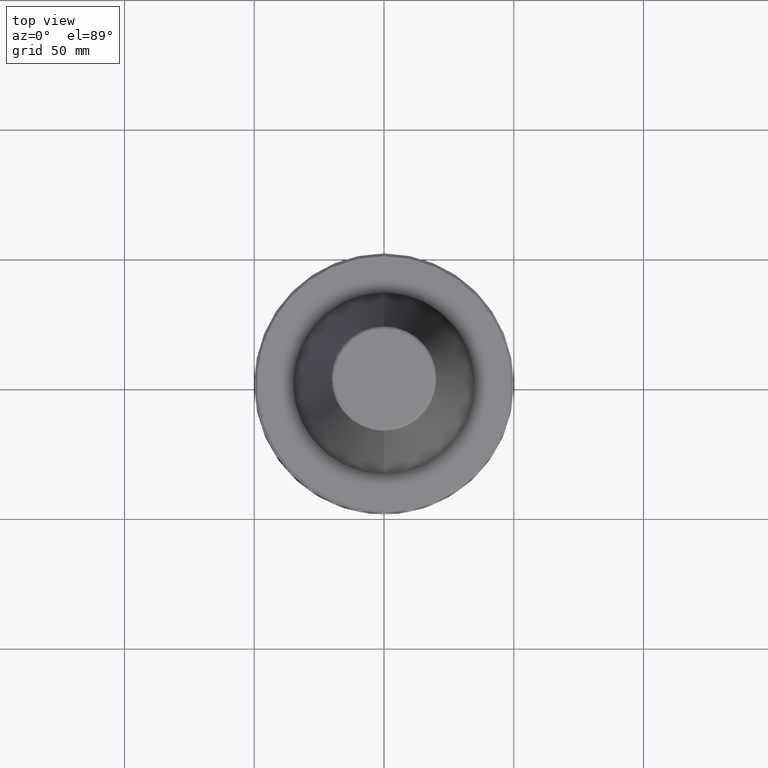
[diagram: clean part render]
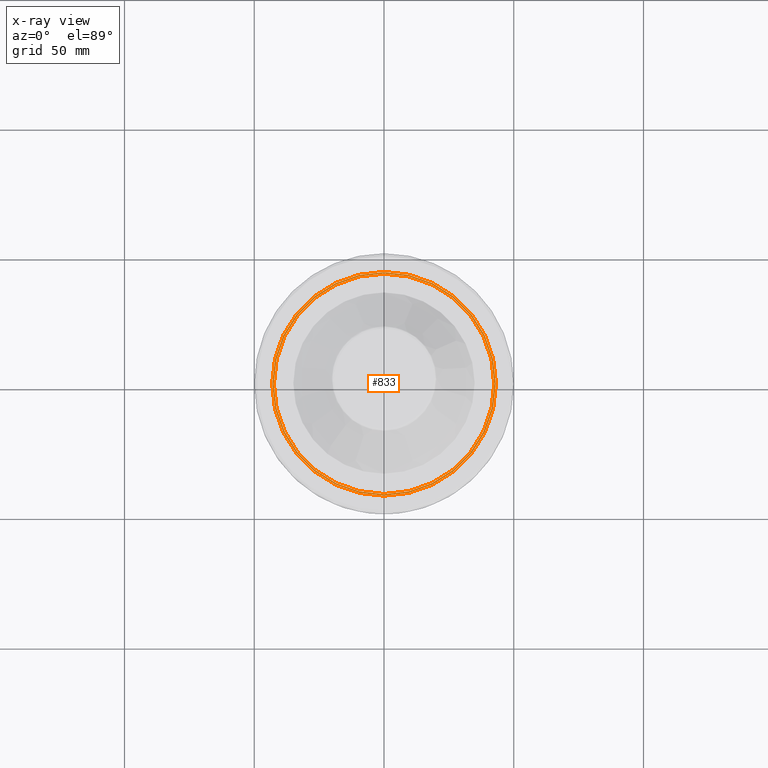
[diagram: x-ray — body ghosted, one internal face saturated and labeled with its STEP entity id]
A machine part, top view, then the same camera in x-ray: the body is ghosted and one INTERNAL B-rep face — a face not visible from any outside direction — is saturated and labeled: STEP entity #833.
In plain terms, the highlighted planar face has unit normal (0, 0, 1).
Its self-contained STEP definition (entity closure, byte-faithful):
#2 = CIRCLE ( 'NONE', #2369, 43.07217782649103600 ) ;
#51 = CIRCLE ( 'NONE', #1928, 42.50000000000000000 ) ;
#165 = CIRCLE ( 'NONE', #2320, 43.07217782649103600 ) ;
#322 = EDGE_CURVE ( 'NONE', #1322, #1301, #51, .T. ) ;
#360 = FACE_OUTER_BOUND ( 'NONE', #2581, .T. ) ;
#747 = EDGE_LOOP ( 'NONE', ( #2480, #1991 ) ) ;
#833 = ADVANCED_FACE ( 'NONE', ( #360, #853 ), #2535, .F. ) ;
#841 = EDGE_CURVE ( 'NONE', #1301, #1322, #2069, .T. ) ;
#853 = FACE_BOUND ( 'NONE', #747, .T. ) ;
#867 = CARTESIAN_POINT ( 'NONE',  ( 42.50000000000000000, 0.0000000000000000000, -19.70000000000001000 ) ) ;
#915 = CARTESIAN_POINT ( 'NONE',  ( -42.50000000000000000, 5.204748896376250900E-015, -19.70000000000001000 ) ) ;
#916 = DIRECTION ( 'NONE',  ( 1.000000000000000000, 0.0000000000000000000, 0.0000000000000000000 ) ) ;
#917 = DIRECTION ( 'NONE',  ( 0.0000000000000000000, -0.0000000000000000000, 1.000000000000000000 ) ) ;
#919 = CARTESIAN_POINT ( 'NONE',  ( 0.0000000000000000000, 0.0000000000000000000, -19.70000000000001000 ) ) ;
#920 = DIRECTION ( 'NONE',  ( 1.000000000000000000, 0.0000000000000000000, 0.0000000000000000000 ) ) ;
#925 = DIRECTION ( 'NONE',  ( 0.0000000000000000000, -0.0000000000000000000, 1.000000000000000000 ) ) ;
#928 = CARTESIAN_POINT ( 'NONE',  ( 0.0000000000000000000, 0.0000000000000000000, -19.70000000000001000 ) ) ;
#947 = AXIS2_PLACEMENT_3D ( 'NONE', #2118, #2662, #2682 ) ;
#1163 = AXIS2_PLACEMENT_3D ( 'NONE', #1307, #2135, #2670 ) ;
#1297 = EDGE_CURVE ( 'NONE', #2657, #2636, #2, .T. ) ;
#1301 = VERTEX_POINT ( 'NONE', #915 ) ;
#1307 = CARTESIAN_POINT ( 'NONE',  ( 0.0000000000000000000, 0.0000000000000000000, -19.70000000000001000 ) ) ;
#1322 = VERTEX_POINT ( 'NONE', #867 ) ;
#1424 = CARTESIAN_POINT ( 'NONE',  ( 43.07217782649103600, 0.0000000000000000000, -19.70000000000001000 ) ) ;
#1477 = CARTESIAN_POINT ( 'NONE',  ( -43.07217782649103600, 5.699027233244276000E-015, -19.70000000000001000 ) ) ;
#1534 = ORIENTED_EDGE ( 'NONE', *, *, #1297, .F. ) ;
#1882 = DIRECTION ( 'NONE',  ( 1.000000000000000000, 0.0000000000000000000, 0.0000000000000000000 ) ) ;
#1885 = DIRECTION ( 'NONE',  ( -0.0000000000000000000, -0.0000000000000000000, -1.000000000000000000 ) ) ;
#1928 = AXIS2_PLACEMENT_3D ( 'NONE', #1981, #1885, #1882 ) ;
#1981 = CARTESIAN_POINT ( 'NONE',  ( 0.0000000000000000000, 0.0000000000000000000, -19.70000000000001000 ) ) ;
#1991 = ORIENTED_EDGE ( 'NONE', *, *, #841, .F. ) ;
#2069 = CIRCLE ( 'NONE', #1163, 42.50000000000000000 ) ;
#2118 = CARTESIAN_POINT ( 'NONE',  ( 0.0000000000000000000, 43.07217782649103600, -19.70000000000000300 ) ) ;
#2134 = ORIENTED_EDGE ( 'NONE', *, *, #2739, .F. ) ;
#2135 = DIRECTION ( 'NONE',  ( -0.0000000000000000000, -0.0000000000000000000, -1.000000000000000000 ) ) ;
#2320 = AXIS2_PLACEMENT_3D ( 'NONE', #919, #917, #916 ) ;
#2369 = AXIS2_PLACEMENT_3D ( 'NONE', #928, #925, #920 ) ;
#2480 = ORIENTED_EDGE ( 'NONE', *, *, #322, .F. ) ;
#2535 = PLANE ( 'NONE',  #947 ) ;
#2581 = EDGE_LOOP ( 'NONE', ( #1534, #2134 ) ) ;
#2636 = VERTEX_POINT ( 'NONE', #1477 ) ;
#2657 = VERTEX_POINT ( 'NONE', #1424 ) ;
#2662 = DIRECTION ( 'NONE',  ( 0.0000000000000000000, 0.0000000000000000000, 1.000000000000000000 ) ) ;
#2670 = DIRECTION ( 'NONE',  ( 1.000000000000000000, 0.0000000000000000000, 0.0000000000000000000 ) ) ;
#2682 = DIRECTION ( 'NONE',  ( 1.000000000000000000, 0.0000000000000000000, -0.0000000000000000000 ) ) ;
#2739 = EDGE_CURVE ( 'NONE', #2636, #2657, #165, .T. ) ;